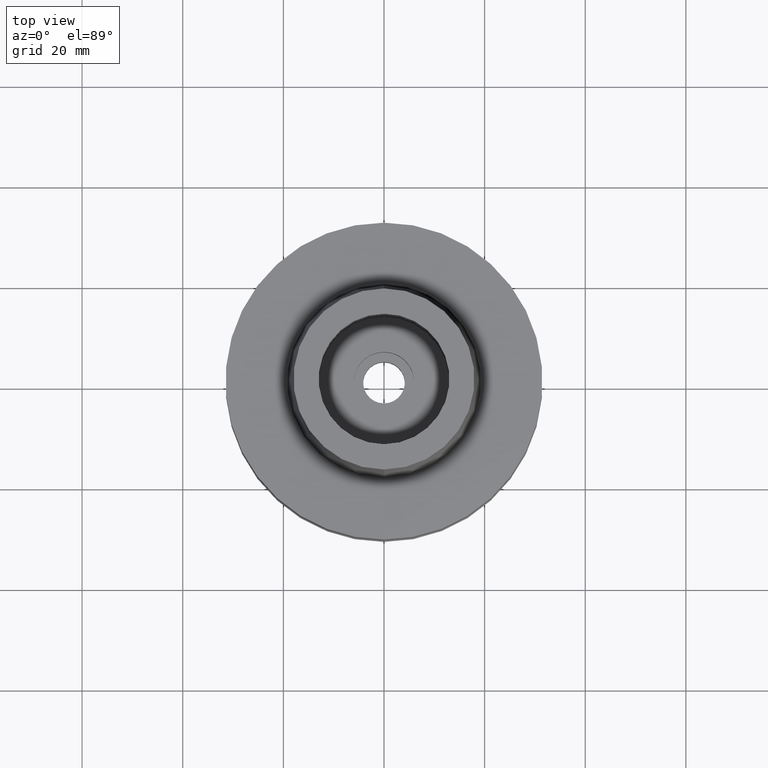
[diagram: clean part render]
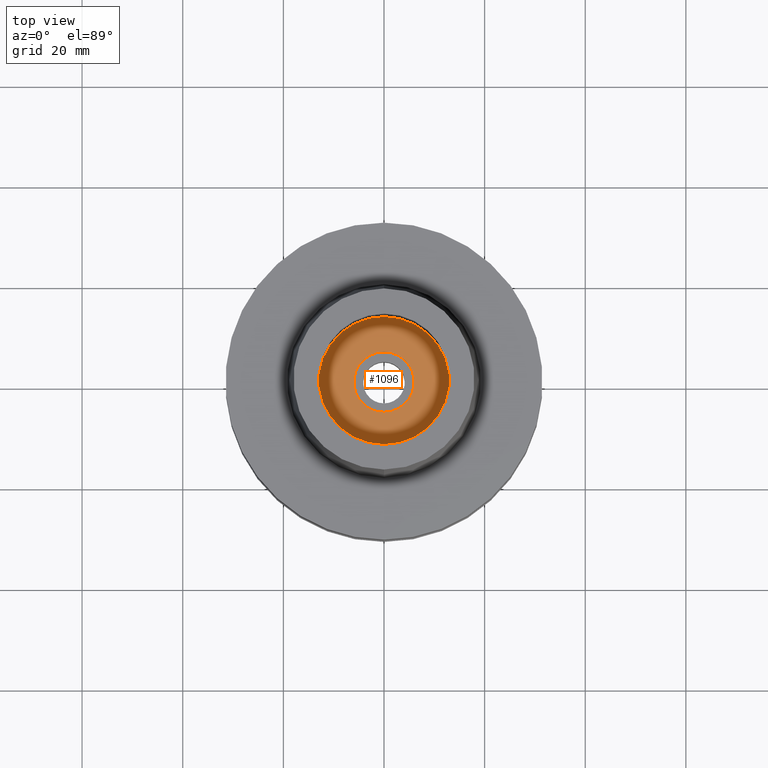
[diagram: same view with one face highlighted and labeled with its STEP entity id]
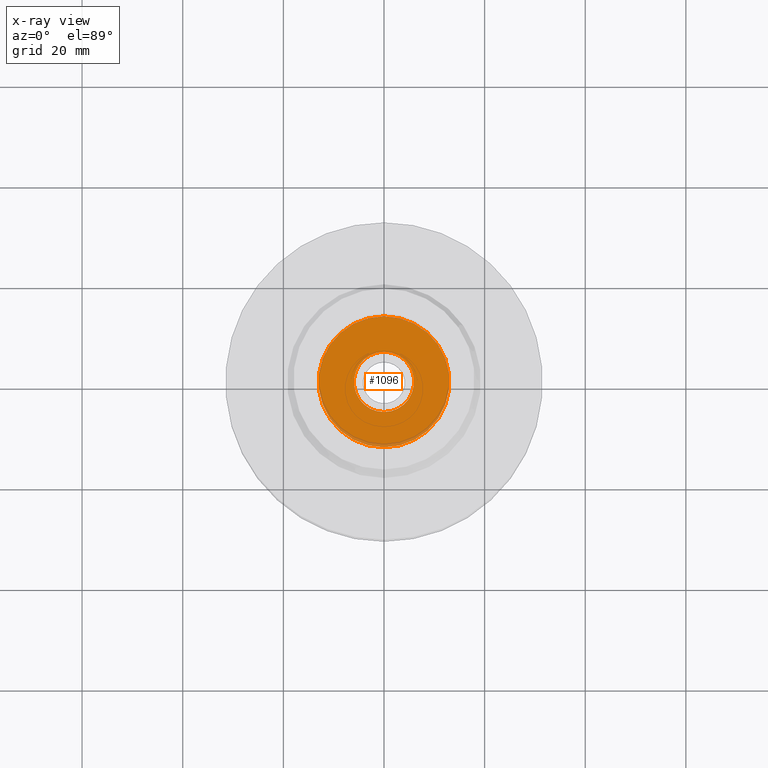
[diagram: x-ray of the same camera — body ghosted, the highlighted face saturated]
A machine part, top view. The second image highlights one B-rep face of the part: STEP entity #1096.
The next image is the same camera in x-ray: the body ghosted, the highlighted face saturated — about 4% of this face is hidden behind the body in this view.
In plain terms, the highlighted planar face has unit normal (0, 0, 1).
Its self-contained STEP definition (entity closure, byte-faithful):
#117 = CARTESIAN_POINT ( 'NONE',  ( 0.0000000000000000000, 0.0000000000000000000, -9.950000000000001066 ) ) ;
#127 = VERTEX_POINT ( 'NONE', #1901 ) ;
#160 = FACE_BOUND ( 'NONE', #864, .T. ) ;
#194 = CARTESIAN_POINT ( 'NONE',  ( 0.0000000000000000000, 0.0000000000000000000, -9.950000000000001066 ) ) ;
#240 = DIRECTION ( 'NONE',  ( 0.0000000000000000000, 0.0000000000000000000, -1.000000000000000000 ) ) ;
#308 = EDGE_LOOP ( 'NONE', ( #860, #688 ) ) ;
#324 = AXIS2_PLACEMENT_3D ( 'NONE', #1349, #240, #423 ) ;
#341 = EDGE_CURVE ( 'NONE', #1220, #2442, #599, .T. ) ;
#423 = DIRECTION ( 'NONE',  ( 0.0000000000000000000, 1.000000000000000000, 0.0000000000000000000 ) ) ;
#447 = CARTESIAN_POINT ( 'NONE',  ( 0.0000000000000000000, 0.0000000000000000000, -9.950000000000001066 ) ) ;
#503 = CIRCLE ( 'NONE', #2730, 6.000000000000000000 ) ;
#599 = CIRCLE ( 'NONE', #324, 13.00000000000000000 ) ;
#640 = CARTESIAN_POINT ( 'NONE',  ( 0.0000000000000000000, 0.0000000000000000000, -9.950000000000001066 ) ) ;
#688 = ORIENTED_EDGE ( 'NONE', *, *, #1534, .F. ) ;
#812 = CARTESIAN_POINT ( 'NONE',  ( 0.0000000000000000000, -6.000000000000000000, -9.950000000000001066 ) ) ;
#860 = ORIENTED_EDGE ( 'NONE', *, *, #341, .F. ) ;
#864 = EDGE_LOOP ( 'NONE', ( #2824, #1642 ) ) ;
#868 = AXIS2_PLACEMENT_3D ( 'NONE', #117, #1880, #2773 ) ;
#872 = AXIS2_PLACEMENT_3D ( 'NONE', #640, #2409, #1303 ) ;
#955 = VERTEX_POINT ( 'NONE', #812 ) ;
#1075 = DIRECTION ( 'NONE',  ( 0.0000000000000000000, 0.0000000000000000000, 1.000000000000000000 ) ) ;
#1096 = ADVANCED_FACE ( 'NONE', ( #2150, #160 ), #2350, .T. ) ;
#1192 = CARTESIAN_POINT ( 'NONE',  ( 0.0000000000000000000, 13.00000000000000000, -9.950000000000001066 ) ) ;
#1220 = VERTEX_POINT ( 'NONE', #1192 ) ;
#1303 = DIRECTION ( 'NONE',  ( 0.0000000000000000000, -1.000000000000000000, 0.0000000000000000000 ) ) ;
#1349 = CARTESIAN_POINT ( 'NONE',  ( 0.0000000000000000000, 0.0000000000000000000, -9.950000000000001066 ) ) ;
#1380 = CIRCLE ( 'NONE', #872, 6.000000000000000000 ) ;
#1534 = EDGE_CURVE ( 'NONE', #2442, #1220, #2634, .T. ) ;
#1642 = ORIENTED_EDGE ( 'NONE', *, *, #2259, .F. ) ;
#1669 = EDGE_CURVE ( 'NONE', #127, #955, #503, .T. ) ;
#1880 = DIRECTION ( 'NONE',  ( 0.0000000000000000000, 0.0000000000000000000, -1.000000000000000000 ) ) ;
#1901 = CARTESIAN_POINT ( 'NONE',  ( 0.0000000000000000000, 6.000000000000000000, -9.950000000000001066 ) ) ;
#1917 = DIRECTION ( 'NONE',  ( 1.000000000000000000, 0.0000000000000000000, 0.0000000000000000000 ) ) ;
#2023 = AXIS2_PLACEMENT_3D ( 'NONE', #194, #1075, #1917 ) ;
#2150 = FACE_OUTER_BOUND ( 'NONE', #308, .T. ) ;
#2214 = DIRECTION ( 'NONE',  ( 0.0000000000000000000, 0.0000000000000000000, 1.000000000000000000 ) ) ;
#2259 = EDGE_CURVE ( 'NONE', #955, #127, #1380, .T. ) ;
#2350 = PLANE ( 'NONE',  #2023 ) ;
#2409 = DIRECTION ( 'NONE',  ( 0.0000000000000000000, 0.0000000000000000000, 1.000000000000000000 ) ) ;
#2442 = VERTEX_POINT ( 'NONE', #2555 ) ;
#2447 = DIRECTION ( 'NONE',  ( 0.0000000000000000000, 1.000000000000000000, 0.0000000000000000000 ) ) ;
#2555 = CARTESIAN_POINT ( 'NONE',  ( 0.0000000000000000000, -13.00000000000000000, -9.950000000000001066 ) ) ;
#2634 = CIRCLE ( 'NONE', #868, 13.00000000000000000 ) ;
#2730 = AXIS2_PLACEMENT_3D ( 'NONE', #447, #2214, #2447 ) ;
#2773 = DIRECTION ( 'NONE',  ( 0.0000000000000000000, -1.000000000000000000, 0.0000000000000000000 ) ) ;
#2824 = ORIENTED_EDGE ( 'NONE', *, *, #1669, .F. ) ;